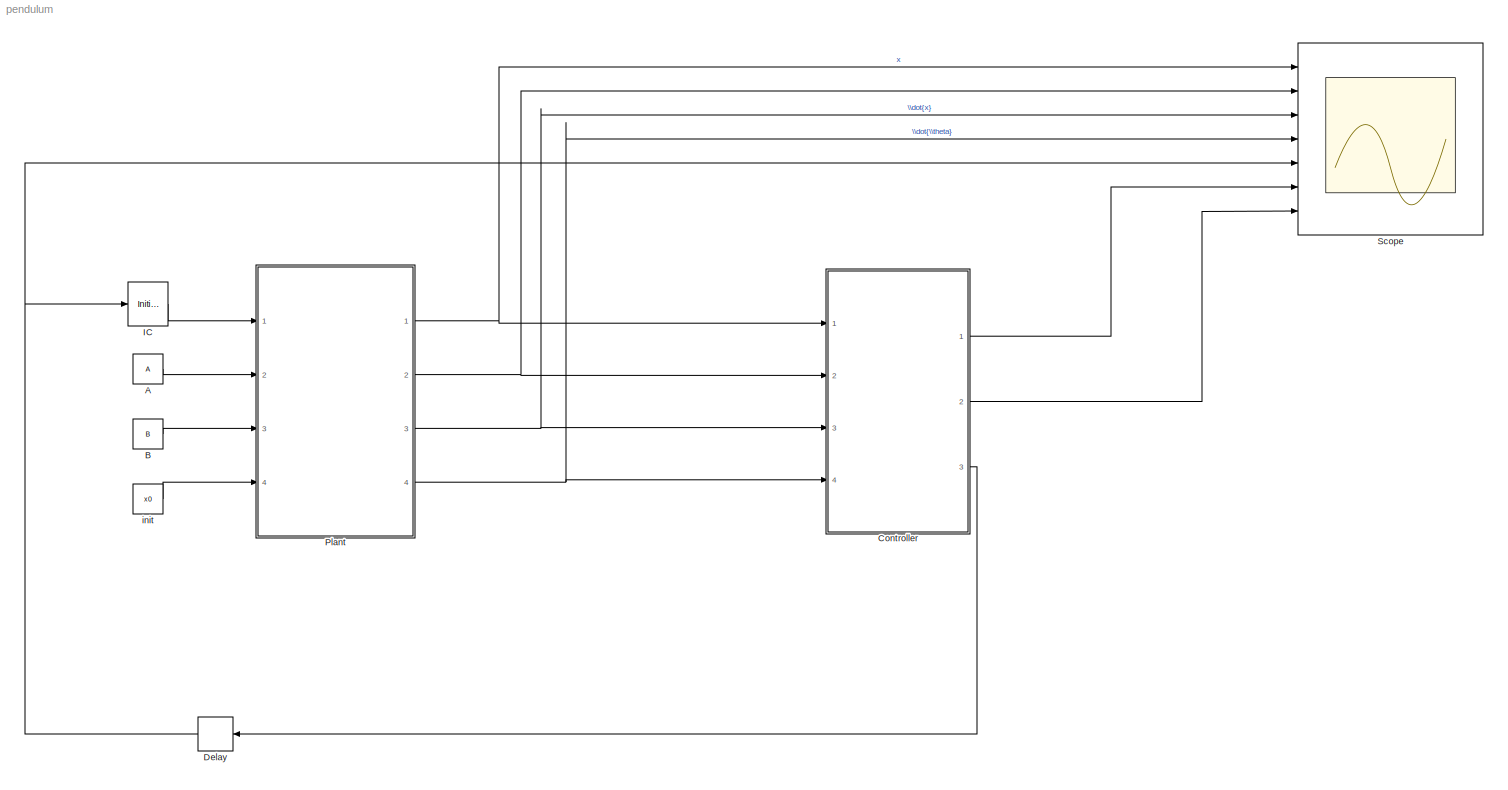
MODEL pendulum
KIND model
BLOCK [Constant] A
  SID = 26
  Value = A
BLOCK [Constant] B
  SID = 27
  Value = B
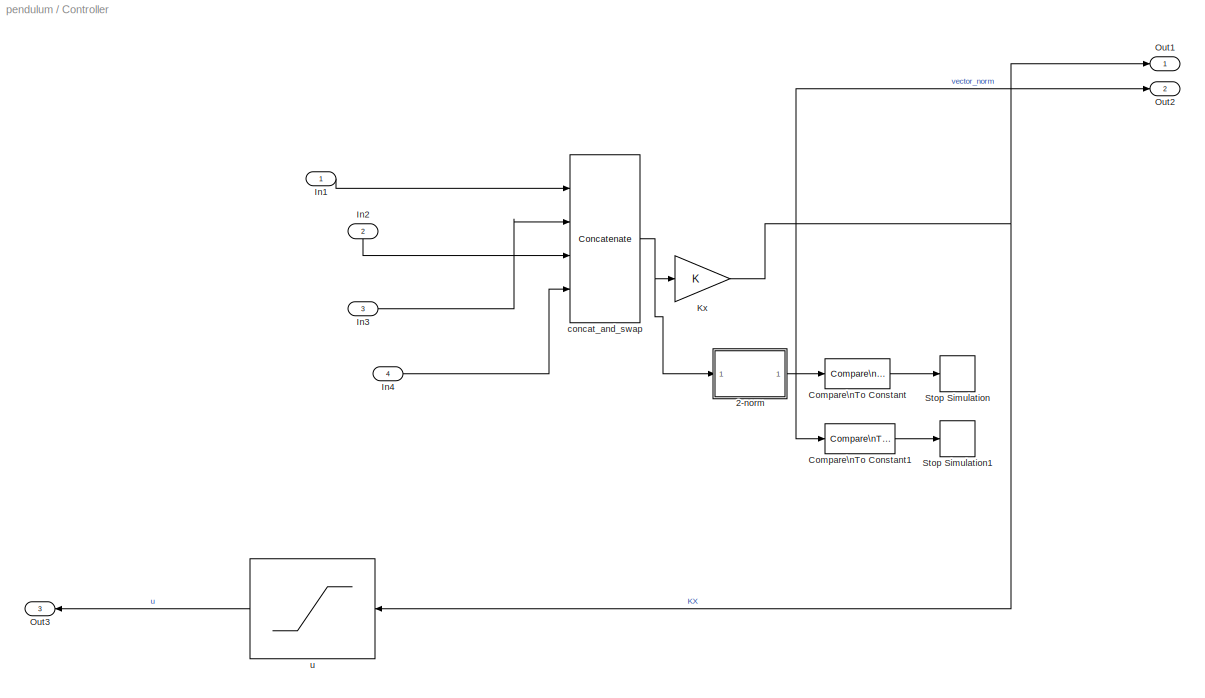
BLOCK [SubSystem] Controller
  Ports = [4, 3]
  RequestExecContextInheritance = off
  SID = 43
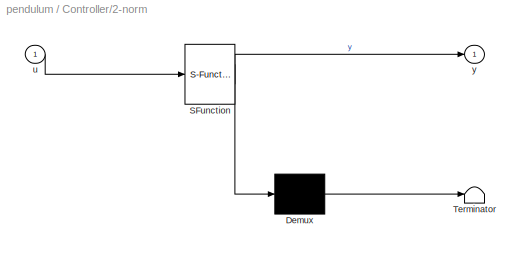
BLOCK [SubSystem] Controller/2-norm
  Commented = on
  ErrorFcn = Stateflow.Translate.translate
  PermitHierarchicalResolution = ExplicitOnly
  Ports = [1, 1]
  RequestExecContextInheritance = off
  SFBlockType = MATLAB Function
  SID = 37
  TreatAsAtomicUnit = on
BLOCK [Demux] Controller/2-norm/ Demux 
  Outputs = 1
  Ports = [1, 1]
  SID = 37::19
BLOCK [S-Function] Controller/2-norm/ SFunction 
  EnableBusSupport = on
  FunctionName = sf_sfun
  PortCounts = [1 2]
  Ports = [1, 2]
  SID = 37::18
  Tag = Stateflow S-Function pendulum 2
BLOCK [Terminator] Controller/2-norm/ Terminator 
  SID = 37::20
BLOCK [Inport] Controller/2-norm/u
  IconDisplay = Port number
  SID = 37::1
BLOCK [Outport] Controller/2-norm/y
  IconDisplay = Port number
  SID = 37::5
BLOCK [Reference] Controller/Compare\nTo Constant  REF=simulink/Logic and Bit\nOperations/Compare\nTo Constant
  Commented = on
  OutDataTypeStr = boolean
  Ports = [1, 1]
  SID = 38
  SourceBlock = simulink/Logic and Bit\nOperations/Compare\nTo Constant
  SourceType = Compare To Constant
  ZeroCross = on
  const = xTerminate
  relop = >=
BLOCK [Reference] Controller/Compare\nTo Constant1  REF=simulink/Logic and Bit\nOperations/Compare\nTo Constant
  Commented = on
  OutDataTypeStr = boolean
  Ports = [1, 1]
  SID = 39
  SourceBlock = simulink/Logic and Bit\nOperations/Compare\nTo Constant
  SourceType = Compare To Constant
  ZeroCross = on
  const = xTerminateMin
  relop = <=
BLOCK [Inport] Controller/In1
  IconDisplay = Port number
  SID = 44
BLOCK [Inport] Controller/In2
  IconDisplay = Port number
  Port = 2
  SID = 45
BLOCK [Inport] Controller/In3
  IconDisplay = Port number
  Port = 3
  SID = 46
BLOCK [Inport] Controller/In4
  IconDisplay = Port number
  Port = 4
  SID = 47
BLOCK [Gain] Controller/Kx
  Gain = K
  Multiplication = Matrix(K*u) (u vector)
  OutDataTypeStr = Inherit: Inherit via internal rule
  ParamDataTypeStr = Inherit: Inherit via internal rule
  SID = 34
  SaturateOnIntegerOverflow = off
BLOCK [Outport] Controller/Out1
  IconDisplay = Port number
  SID = 48
BLOCK [Outport] Controller/Out2
  IconDisplay = Port number
  Port = 2
  SID = 49
BLOCK [Outport] Controller/Out3
  IconDisplay = Port number
  Port = 3
  SID = 50
BLOCK [Stop] Controller/Stop Simulation
  Commented = on
  SID = 35
BLOCK [Stop] Controller/Stop Simulation1
  Commented = on
  SID = 40
BLOCK [Concatenate] Controller/concat_and_swap
  NumInputs = 4
  Ports = [4, 1]
  SID = 33
BLOCK [Saturate] Controller/u
  InputPortMap = u0
  LowerLimit = u_sat_min
  Ports = [1, 1]
  SID = 21
  UpperLimit = u_sat_max
BLOCK [Delay] Delay
  DelayLength = 1
  InitialCondition = 0
  InputPortMap = u0
  Ports = [1, 1]
  SID = 42
BLOCK [InitialCondition] IC
  SID = 13
  Value = 0
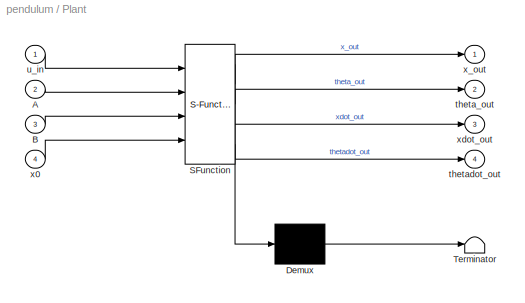
BLOCK [SubSystem] Plant
  ErrorFcn = Stateflow.Translate.translate
  PermitHierarchicalResolution = ExplicitOnly
  Ports = [4, 4]
  RequestExecContextInheritance = off
  SFBlockType = Chart
  SID = 2
  TreatAsAtomicUnit = on
BLOCK [Demux] Plant/ Demux 
  Outputs = 1
  Ports = [1, 1]
  SID = 2::56
BLOCK [S-Function] Plant/ SFunction 
  EnableBusSupport = on
  FunctionName = sf_sfun
  PortCounts = [4 5]
  Ports = [4, 5]
  SID = 2::55
  Tag = Stateflow S-Function pendulum 1
BLOCK [Terminator] Plant/ Terminator 
  SID = 2::57
BLOCK [Inport] Plant/A
  IconDisplay = Port number
  Port = 2
  SID = 2::58
BLOCK [Inport] Plant/B
  IconDisplay = Port number
  Port = 3
  SID = 2::59
BLOCK [Outport] Plant/theta_out
  IconDisplay = Port number
  Port = 2
  SID = 2::49
BLOCK [Outport] Plant/thetadot_out
  IconDisplay = Port number
  Port = 4
  SID = 2::52
BLOCK [Inport] Plant/u_in
  IconDisplay = Port number
  SID = 2::47
BLOCK [Inport] Plant/x0
  IconDisplay = Port number
  Port = 4
  SID = 2::60
BLOCK [Outport] Plant/x_out
  IconDisplay = Port number
  SID = 2::48
BLOCK [Outport] Plant/xdot_out
  IconDisplay = Port number
  Port = 3
  SID = 2::51
BLOCK [Scope] Scope
  Commented = on
  DataFormat = StructureWithTime
  Floating = off
  LegendLocations = 0.96765     0.96104    0.021875    0.013776\n0.94369     0.82283    0.045833    0.013776\n0.95793     0.68462    0.031597    0.013776\n0.94959     0.54641    0.039931    0.013776\n 0.9673      0.4082    0.029514    0.013776\n0.96453     0.26999       0.025    0.013776\n 0.9489     0.13178    0.040625    0.013776
  LimitDataPoints = off
  NumInputPorts = 7
  Ports = [7]
  SID = 11
  SampleTime = 0
  SaveName = PendulumScopeData
  SaveToWorkspace = on
  ShowLegends = on
  TimeRange = 15
  YMax = 0.02~70~0.6~4~5.1975~2.1~5
  YMin = -0.07~47.5~0.49~1~4.7025~1.9~-5
  ZoomMode = xonly
BLOCK [Constant] init
  SID = 31
  Value = x0
LINE A:1 -> Plant:2
LINE B:1 -> Plant:3
LINE Controller/2-norm/ Demux :1 -> Controller/2-norm/ Terminator :1
LINE Controller/2-norm/ SFunction :1 -> Controller/2-norm/ Demux :1
LINE Controller/2-norm/ SFunction :2 -> Controller/2-norm/y:1
LINE Controller/2-norm/u:1 -> Controller/2-norm/ SFunction :1
NET Controller/2-norm:1 -> Controller/Compare\nTo Constant1:1, Controller/Compare\nTo Constant:1, Controller/Out2:1
LINE Controller/Compare\nTo Constant1:1 -> Controller/Stop Simulation1:1
LINE Controller/Compare\nTo Constant:1 -> Controller/Stop Simulation:1
LINE Controller/In1:1 -> Controller/concat_and_swap:1
LINE Controller/In2:1 -> Controller/concat_and_swap:3
LINE Controller/In3:1 -> Controller/concat_and_swap:2
LINE Controller/In4:1 -> Controller/concat_and_swap:4
NET Controller/Kx:1 -> Controller/Out1:1, Controller/u:1
NET Controller/concat_and_swap:1 -> Controller/2-norm:1, Controller/Kx:1
LINE Controller/u:1 -> Controller/Out3:1
LINE Controller:1 -> Scope:6
LINE Controller:2 -> Scope:7
LINE Controller:3 -> Delay:1
NET Delay:1 -> IC:1, Scope:5
LINE IC:1 -> Plant:1
LINE Plant/ Demux :1 -> Plant/ Terminator :1
LINE Plant/ SFunction :1 -> Plant/ Demux :1
LINE Plant/ SFunction :2 -> Plant/x_out:1
LINE Plant/ SFunction :3 -> Plant/theta_out:1
LINE Plant/ SFunction :4 -> Plant/xdot_out:1
LINE Plant/ SFunction :5 -> Plant/thetadot_out:1
LINE Plant/A:1 -> Plant/ SFunction :2
LINE Plant/B:1 -> Plant/ SFunction :3
LINE Plant/u_in:1 -> Plant/ SFunction :1
LINE Plant/x0:1 -> Plant/ SFunction :4
NET Plant:1 -> Controller:1, Scope:1
NET Plant:2 -> Controller:2, Scope:2
NET Plant:3 -> Controller:3, Scope:3
NET Plant:4 -> Controller:4, Scope:4
LINE init:1 -> Plant:4
note: NET lines group one-source signal fan-out (src -> all destinations, sorted); 1:1 wires keep LINE
CHART Plant states=1 transitions=1
  STATE_LABEL 'Plant\\ndu:\\nx_dot = x*A[0][0]+xdot*A[0][1]+theta*A[0][2]+thetadot*A[0][3]+u_in*B[0];\\nxdot_dot = x*A[1][0]+xdot*A[1][1]+theta*A[1][2]+thetadot*A[1][3]+u_in*B[1];\\ntheta_dot = x*A[2][0]+xdot*A[2][1]+theta*A[2][2]+thetadot*A[2][3]+u_in*B[2];\\nthetadot_dot = x*A[3][0]+xdot*A[3][1]+theta*A[3][2]+thetadot*A[3][3]+u_in*B[3];\\nx_out = x;\\nxdot_out = xdot;\\ntheta_out = theta;\\nthetadot_out = thetadot;'
CHART Controller/2-norm states=1 transitions=1
  STATE_LABEL 'eML_blk_kernel()'
